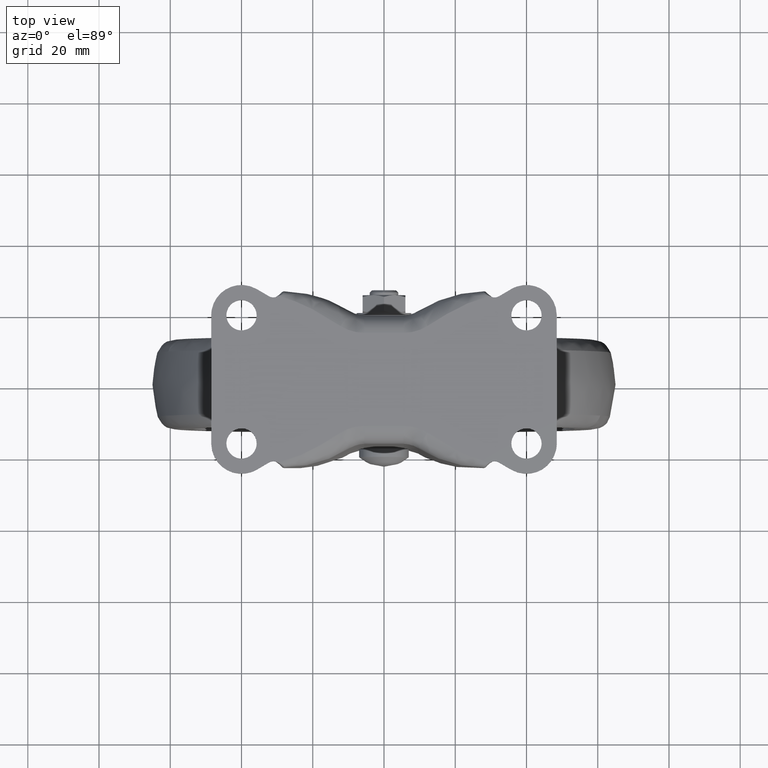
[diagram: clean part render]
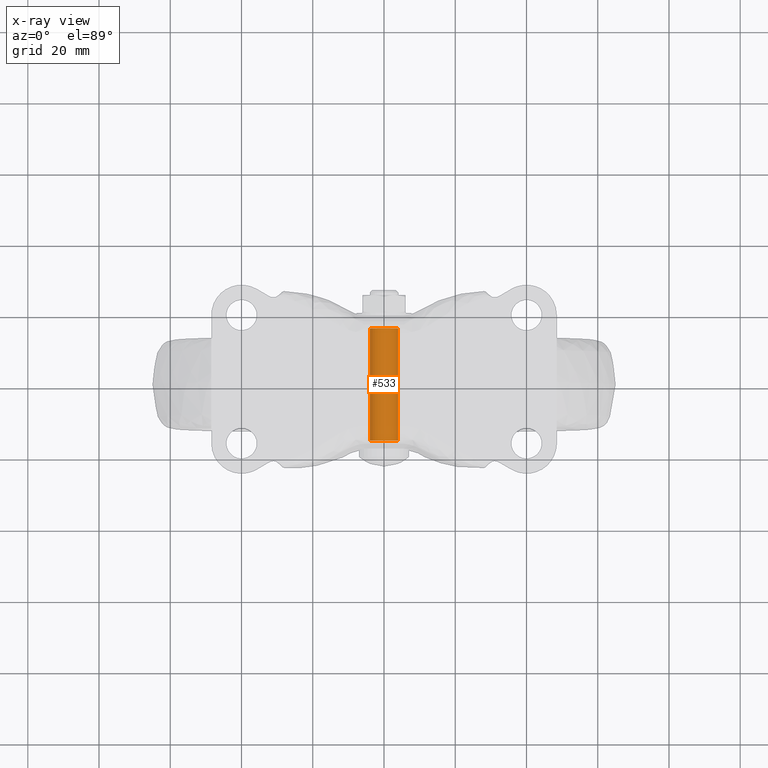
[diagram: x-ray — body ghosted, one internal face saturated and labeled with its STEP entity id]
A machine part, top view, then the same camera in x-ray: the body is ghosted and one INTERNAL B-rep face — a face not visible from any outside direction — is saturated and labeled: STEP entity #533.
In plain terms, the highlighted face is a freeform B-spline surface patch.
Its self-contained STEP definition (entity closure, byte-faithful):
#431=CARTESIAN_POINT('',(3.972038105454666,16.537500000000001,-85.472136938627031));
#432=CARTESIAN_POINT('',(3.985550461794422,16.537499999999998,-85.358458914551903));
#433=CARTESIAN_POINT('',(3.992539193687467,16.537500000000001,-85.244194158139422));
#434=CARTESIAN_POINT('',(4.236733351826894,16.537499999999998,-81.251654964451959));
#435=CARTESIAN_POINT('',(0.244194158139428,16.537500000000001,-81.007460806312537));
#436=CARTESIAN_POINT('',(-3.748345035548039,16.537499999999998,-80.763266648173115));
#437=CARTESIAN_POINT('',(-3.992539193687467,16.537500000000001,-84.755805841860578));
#438=CARTESIAN_POINT('',(3.972038105454666,-16.557187500000008,-85.472136938627031));
#439=CARTESIAN_POINT('',(3.985550461794422,-16.557187500000005,-85.358458914551903));
#440=CARTESIAN_POINT('',(3.992539193687467,-16.557187500000008,-85.244194158139422));
#441=CARTESIAN_POINT('',(4.236733351826894,-16.557187500000001,-81.251654964451959));
#442=CARTESIAN_POINT('',(0.244194158139428,-16.557187500000008,-81.007460806312537));
#443=CARTESIAN_POINT('',(-3.748345035548039,-16.557187500000001,-80.763266648173115));
#444=CARTESIAN_POINT('',(-3.992539193687467,-16.557187500000008,-84.755805841860578));
#452=(BOUNDED_SURFACE()B_SPLINE_SURFACE(2,1,((#431,#438),(#432,#439),(#433,#440),(#434,#441),(#435,#442),(#436,#443),(#437,#444)),.UNSPECIFIED.,.F.,.F.,.U.)B_SPLINE_SURFACE_WITH_KNOTS((3,2,2,3),(2,2),(0.0,0.265096679918781,6.892513677888291,13.519930675857800),(0.0,33.094687500000013),.UNSPECIFIED.)GEOMETRIC_REPRESENTATION_ITEM()RATIONAL_B_SPLINE_SURFACE(((0.977505800795127,0.977505800795127),(0.988284271247462,0.988284271247462),(1.0,1.0),(0.707106781186548,0.707106781186548),(1.0,1.0),(0.707106781186548,0.707106781186548),(1.0,1.0)))REPRESENTATION_ITEM('')SURFACE());
#453=CARTESIAN_POINT('',(3.972038105448754,-15.750000000000000,-85.472136938676755));
#454=VERTEX_POINT('',#453);
#455=CARTESIAN_POINT('',(0.0,-15.750000000000000,-81.0));
#456=VERTEX_POINT('',#455);
#457=CARTESIAN_POINT('',(3.972038105448755,-15.749999999999996,-85.472136938676755));
#458=CARTESIAN_POINT('',(4.000000000000000,-15.750000000000000,-85.236896478657897));
#459=CARTESIAN_POINT('',(4.0,-15.750000000000000,-85.0));
#460=CARTESIAN_POINT('',(4.000000000000000,-15.750000000000009,-81.0));
#461=CARTESIAN_POINT('',(0.0,-15.750000000000000,-81.0));
#469=(BOUNDED_CURVE()B_SPLINE_CURVE(2,(#457,#458,#459,#460,#461),.UNSPECIFIED.,.F.,.U.)B_SPLINE_CURVE_WITH_KNOTS((3,2,3),(0.229562473511412,0.250000000000000,0.500000000000000),.UNSPECIFIED.)CURVE()GEOMETRIC_REPRESENTATION_ITEM()RATIONAL_B_SPLINE_CURVE((0.956026754179591,0.976055948328690,1.0,0.707106781186548,1.0))REPRESENTATION_ITEM(''));
#470=EDGE_CURVE('',#454,#456,#469,.T.);
#471=ORIENTED_EDGE('',*,*,#470,.T.);
#472=CARTESIAN_POINT('',(-3.992539193649228,-15.750000000000000,-84.755805841235372));
#473=VERTEX_POINT('',#472);
#474=CARTESIAN_POINT('',(0.0,-15.750000000000000,-81.0));
#475=CARTESIAN_POINT('',(-3.762824266442141,-15.749999999999995,-81.0));
#476=CARTESIAN_POINT('',(-3.992539193649229,-15.749999999999998,-84.755805841235372));
#484=(BOUNDED_CURVE()B_SPLINE_CURVE(2,(#474,#475,#476),.UNSPECIFIED.,.F.,.U.)B_SPLINE_CURVE_WITH_KNOTS((3,3),(0.500000000000000,0.739332962187930),.UNSPECIFIED.)CURVE()GEOMETRIC_REPRESENTATION_ITEM()RATIONAL_B_SPLINE_CURVE((1.0,0.719603993346475,0.976072041557388))REPRESENTATION_ITEM(''));
#485=EDGE_CURVE('',#456,#473,#484,.T.);
#486=ORIENTED_EDGE('',*,*,#485,.T.);
#487=CARTESIAN_POINT('',(-3.992539193649228,15.750000000000000,-84.755805841235372));
#488=VERTEX_POINT('',#487);
#489=CARTESIAN_POINT('',(-3.992539193649228,15.750000000000000,-84.755805841235372));
#490=CARTESIAN_POINT('',(-3.992539193649228,-15.750000000000000,-84.755805841235372));
#491=QUASI_UNIFORM_CURVE('',1,(#489,#490),.UNSPECIFIED.,.F.,.U.);
#492=EDGE_CURVE('',#488,#473,#491,.T.);
#493=ORIENTED_EDGE('',*,*,#492,.F.);
#494=CARTESIAN_POINT('',(0.0,15.750000000000000,-81.0));
#495=VERTEX_POINT('',#494);
#496=CARTESIAN_POINT('',(0.0,15.750000000000000,-81.0));
#497=CARTESIAN_POINT('',(-3.762824266442093,15.750000000000009,-81.0));
#498=CARTESIAN_POINT('',(-3.992539193649228,15.750000000000004,-84.755805841235372));
#506=(BOUNDED_CURVE()B_SPLINE_CURVE(2,(#496,#497,#498),.UNSPECIFIED.,.F.,.U.)B_SPLINE_CURVE_WITH_KNOTS((3,3),(0.500000000000000,0.739332962187928),.UNSPECIFIED.)CURVE()GEOMETRIC_REPRESENTATION_ITEM()RATIONAL_B_SPLINE_CURVE((1.0,0.719603993346478,0.976072041557383))REPRESENTATION_ITEM(''));
#507=EDGE_CURVE('',#495,#488,#506,.T.);
#508=ORIENTED_EDGE('',*,*,#507,.F.);
#509=CARTESIAN_POINT('',(3.972038105448754,15.750000000000000,-85.472136938676755));
#510=VERTEX_POINT('',#509);
#511=CARTESIAN_POINT('',(3.972038105448755,15.750000000000004,-85.472136938676755));
#512=CARTESIAN_POINT('',(4.000000000000000,15.750000000000004,-85.236896478657897));
#513=CARTESIAN_POINT('',(4.0,15.750000000000000,-85.0));
#514=CARTESIAN_POINT('',(4.000000000000000,15.750000000000009,-81.0));
#515=CARTESIAN_POINT('',(0.0,15.750000000000000,-81.0));
#523=(BOUNDED_CURVE()B_SPLINE_CURVE(2,(#511,#512,#513,#514,#515),.UNSPECIFIED.,.F.,.U.)B_SPLINE_CURVE_WITH_KNOTS((3,2,3),(0.229562473511412,0.250000000000000,0.500000000000000),.UNSPECIFIED.)CURVE()GEOMETRIC_REPRESENTATION_ITEM()RATIONAL_B_SPLINE_CURVE((0.956026754179591,0.976055948328689,1.0,0.707106781186548,1.0))REPRESENTATION_ITEM(''));
#524=EDGE_CURVE('',#510,#495,#523,.T.);
#525=ORIENTED_EDGE('',*,*,#524,.F.);
#526=CARTESIAN_POINT('',(3.972038105448754,15.750000000000000,-85.472136938676755));
#527=CARTESIAN_POINT('',(3.972038105448754,-15.750000000000000,-85.472136938676755));
#528=QUASI_UNIFORM_CURVE('',1,(#526,#527),.UNSPECIFIED.,.F.,.U.);
#529=EDGE_CURVE('',#510,#454,#528,.T.);
#530=ORIENTED_EDGE('',*,*,#529,.T.);
#531=EDGE_LOOP('',(#471,#486,#493,#508,#525,#530));
#532=FACE_OUTER_BOUND('',#531,.T.);
#533=ADVANCED_FACE('',(#532),#452,.F.);